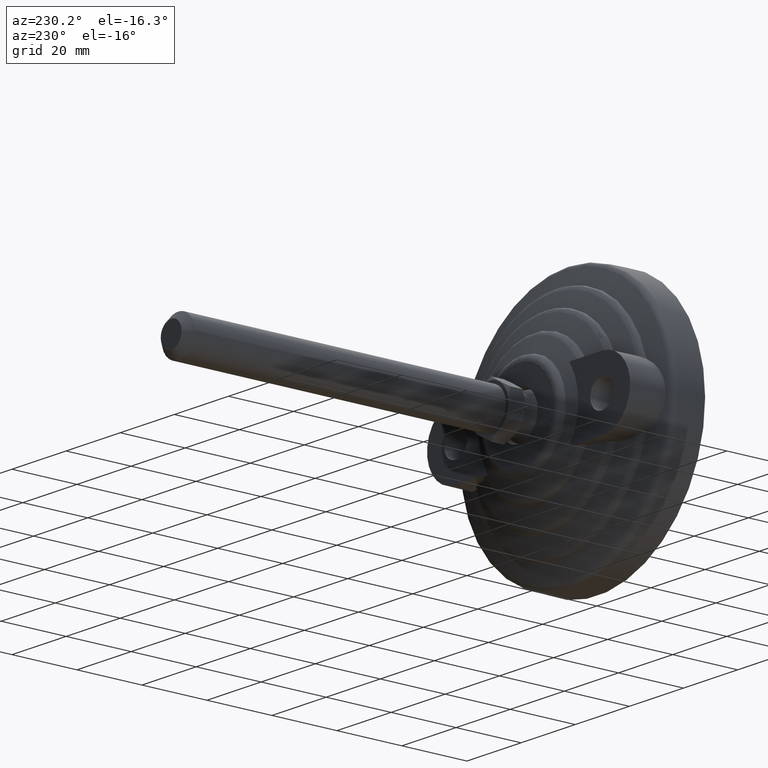
[diagram: clean part render]
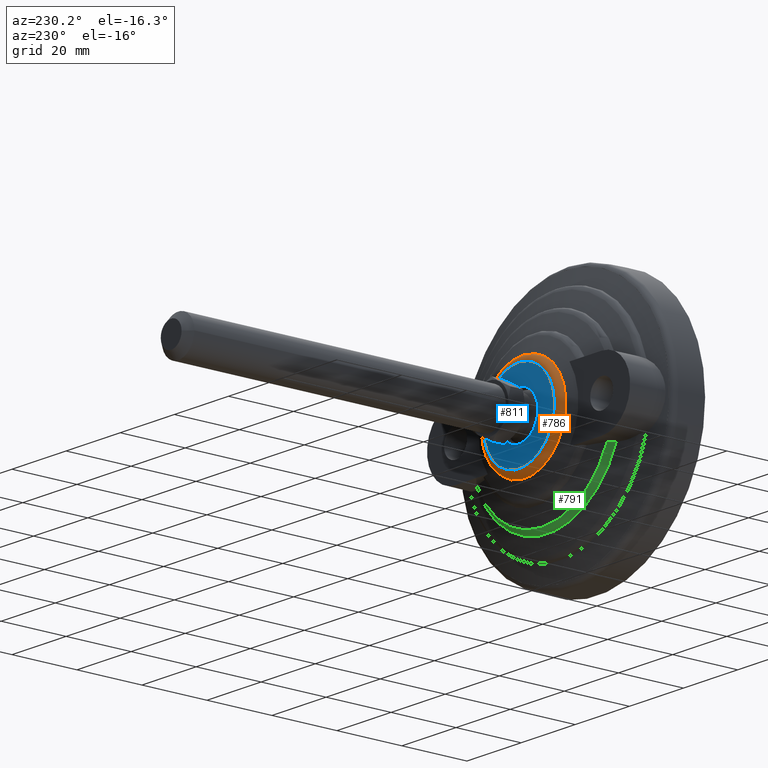
[diagram: same view with three faces highlighted in distinct colors, each labeled with its STEP entity id]
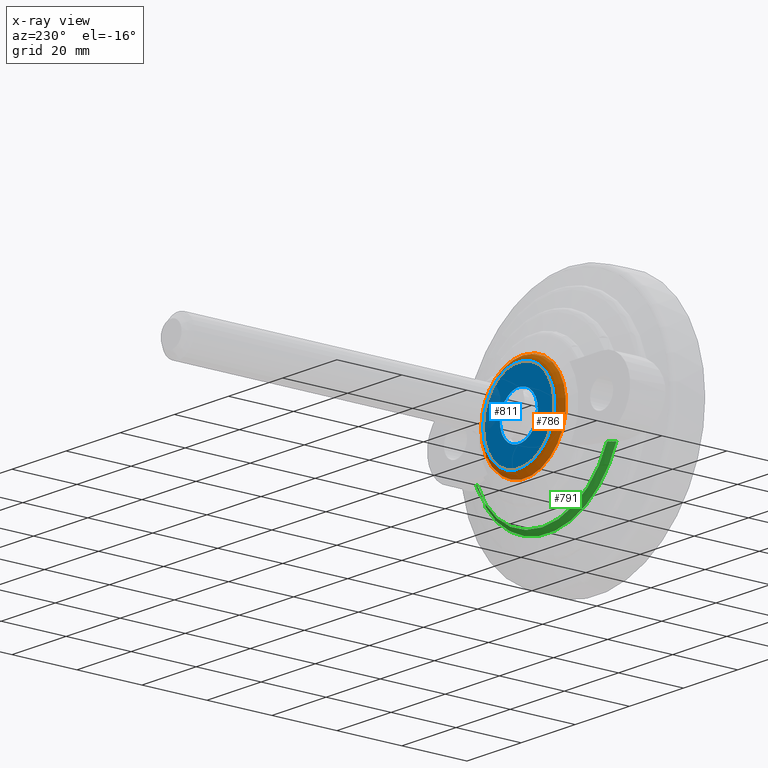
[diagram: x-ray of the same camera — body ghosted, the three highlighted faces saturated]
A machine part, auxiliary view with three faces highlighted in distinct colors.
The next image is the same camera in x-ray (body ghosted, the three faces saturated) — at least one of them is partly hidden behind the body in this view.
Their STEP definitions:

[orange] entity #786 — the highlighted toroidal blend (fillet) surface has major radius 13.2203 mm and minor (blend) radius 2.02 mm.
#114=TOROIDAL_SURFACE('',#886,13.2202761765558,2.02002500361655);
#125=FACE_OUTER_BOUND('',#171,.T.);
#171=EDGE_LOOP('',(#551,#552,#553,#554,#555,#556));
#283=CIRCLE('',#887,15.2285588046525);
#284=CIRCLE('',#888,15.2285588046525);
#285=CIRCLE('',#889,2.02002500361655);
#286=CIRCLE('',#890,13.2101000650174);
#287=CIRCLE('',#891,13.2101000650174);
#333=VERTEX_POINT('',#1274);
#334=VERTEX_POINT('',#1275);
#335=VERTEX_POINT('',#1278);
#336=VERTEX_POINT('',#1280);
#420=EDGE_CURVE('',#333,#334,#283,.T.);
#421=EDGE_CURVE('',#334,#333,#284,.T.);
#422=EDGE_CURVE('',#334,#335,#285,.T.);
#423=EDGE_CURVE('',#335,#336,#286,.T.);
#424=EDGE_CURVE('',#336,#335,#287,.T.);
#551=ORIENTED_EDGE('',*,*,#420,.F.);
#552=ORIENTED_EDGE('',*,*,#421,.F.);
#553=ORIENTED_EDGE('',*,*,#422,.T.);
#554=ORIENTED_EDGE('',*,*,#423,.T.);
#555=ORIENTED_EDGE('',*,*,#424,.T.);
#556=ORIENTED_EDGE('',*,*,#422,.F.);
#786=ADVANCED_FACE('',(#125),#114,.T.);
#886=AXIS2_PLACEMENT_3D('',#1273,#1003,#1004);
#887=AXIS2_PLACEMENT_3D('',#1276,#1005,#1006);
#888=AXIS2_PLACEMENT_3D('',#1277,#1007,#1008);
#889=AXIS2_PLACEMENT_3D('',#1279,#1009,#1010);
#890=AXIS2_PLACEMENT_3D('',#1281,#1011,#1012);
#891=AXIS2_PLACEMENT_3D('',#1282,#1013,#1014);
#1003=DIRECTION('center_axis',(0.,-1.,0.));
#1004=DIRECTION('ref_axis',(0.,0.,-1.));
#1005=DIRECTION('center_axis',(0.,-1.,0.));
#1006=DIRECTION('ref_axis',(-1.,0.,0.));
#1007=DIRECTION('center_axis',(0.,-1.,0.));
#1008=DIRECTION('ref_axis',(-1.,0.,0.));
#1009=DIRECTION('center_axis',(-1.,0.,-1.22464679914735E-16));
#1010=DIRECTION('ref_axis',(-1.22464679914735E-16,0.,1.));
#1011=DIRECTION('center_axis',(0.,-1.,0.));
#1012=DIRECTION('ref_axis',(-1.,0.,0.));
#1013=DIRECTION('center_axis',(0.,-1.,0.));
#1014=DIRECTION('ref_axis',(-1.,0.,0.));
#1273=CARTESIAN_POINT('Origin',(0.,21.979987752229,0.));
#1274=CARTESIAN_POINT('',(15.2285588046525,22.1974777541165,1.86489898717352E-15));
#1275=CARTESIAN_POINT('',(-1.86496057957449E-15,22.1974777541165,15.2285588046525));
#1276=CARTESIAN_POINT('Origin',(0.,22.1974777541165,0.));
#1277=CARTESIAN_POINT('Origin',(0.,22.1974777541165,0.));
#1278=CARTESIAN_POINT('',(-1.61777067610398E-15,23.9999871240086,13.2101000650174));
#1279=CARTESIAN_POINT('Origin',(-1.61901689034631E-15,21.979987752229,13.2202761765558));
#1280=CARTESIAN_POINT('',(13.2101000650174,23.9999871240086,1.61771724742497E-15));
#1281=CARTESIAN_POINT('Origin',(0.,23.9999871240086,0.));
#1282=CARTESIAN_POINT('Origin',(0.,23.9999871240086,0.));

[blue] entity #811 — the highlighted planar face has unit normal (0, 1, 0).
#34=FACE_BOUND('',#199,.T.);
#45=PLANE('',#940);
#150=FACE_OUTER_BOUND('',#198,.T.);
#198=EDGE_LOOP('',(#693));
#199=EDGE_LOOP('',(#694));
#288=CIRCLE('',#893,13.13);
#306=CIRCLE('',#921,7.);
#337=VERTEX_POINT('',#1284);
#367=VERTEX_POINT('',#1478);
#426=EDGE_CURVE('',#337,#337,#288,.T.);
#463=EDGE_CURVE('',#367,#367,#306,.T.);
#693=ORIENTED_EDGE('',*,*,#426,.F.);
#694=ORIENTED_EDGE('',*,*,#463,.T.);
#811=ADVANCED_FACE('',(#150,#34),#45,.T.);
#893=AXIS2_PLACEMENT_3D('',#1286,#1018,#1019);
#921=AXIS2_PLACEMENT_3D('',#1479,#1077,#1078);
#940=AXIS2_PLACEMENT_3D('',#1566,#1124,#1125);
#1018=DIRECTION('center_axis',(0.,-1.,0.));
#1019=DIRECTION('ref_axis',(-1.,0.,0.));
#1077=DIRECTION('center_axis',(0.,-1.,0.));
#1078=DIRECTION('ref_axis',(1.,0.,0.));
#1124=DIRECTION('center_axis',(0.,1.,0.));
#1125=DIRECTION('ref_axis',(0.,0.,1.));
#1284=CARTESIAN_POINT('',(13.13,24.,1.60790814256878E-15));
#1286=CARTESIAN_POINT('Origin',(0.,24.,0.));
#1478=CARTESIAN_POINT('',(-7.,24.,8.57224447675664E-16));
#1479=CARTESIAN_POINT('Origin',(0.,24.,0.));
#1566=CARTESIAN_POINT('Origin',(-6.565,24.,-1.60790814256878E-15));

[green] entity #791 — the highlighted toroidal blend (fillet) surface has major radius 25.4983 mm and minor (blend) radius 2.0201 mm.
#101=B_SPLINE_CURVE_WITH_KNOTS('',3,(#1368,#1369,#1370,#1371,#1372,#1373,
#1374,#1375,#1376,#1377),.UNSPECIFIED.,.F.,.F.,(4,2,2,2,4),(-0.238121557201233,
-0.22862764297218,-0.148658180348353,-0.0728183243338206,-0.0212879109177592),
 .UNSPECIFIED.);
#102=B_SPLINE_CURVE_WITH_KNOTS('',3,(#1380,#1381,#1382,#1383,#1384,#1385,
#1386,#1387,#1388,#1389),.UNSPECIFIED.,.F.,.F.,(4,2,2,2,4),(0.0212879109177592,
0.0728183243338206,0.148658180348353,0.22862764297218,0.238121557201232),
 .UNSPECIFIED.);
#117=TOROIDAL_SURFACE('',#904,25.4983075776962,2.02009596443887);
#130=FACE_OUTER_BOUND('',#176,.T.);
#176=EDGE_LOOP('',(#583,#584,#585,#586));
#296=CIRCLE('',#905,26.2130899969146);
#297=CIRCLE('',#906,27.5062430386496);
#351=VERTEX_POINT('',#1364);
#352=VERTEX_POINT('',#1365);
#353=VERTEX_POINT('',#1367);
#354=VERTEX_POINT('',#1378);
#443=EDGE_CURVE('',#351,#352,#296,.T.);
#444=EDGE_CURVE('',#352,#353,#101,.T.);
#445=EDGE_CURVE('',#354,#353,#297,.T.);
#446=EDGE_CURVE('',#354,#351,#102,.T.);
#583=ORIENTED_EDGE('',*,*,#443,.T.);
#584=ORIENTED_EDGE('',*,*,#444,.T.);
#585=ORIENTED_EDGE('',*,*,#445,.F.);
#586=ORIENTED_EDGE('',*,*,#446,.T.);
#791=ADVANCED_FACE('',(#130),#117,.T.);
#904=AXIS2_PLACEMENT_3D('',#1363,#1041,#1042);
#905=AXIS2_PLACEMENT_3D('',#1366,#1043,#1044);
#906=AXIS2_PLACEMENT_3D('',#1379,#1045,#1046);
#1041=DIRECTION('center_axis',(0.,-1.,0.));
#1042=DIRECTION('ref_axis',(0.,0.,-1.));
#1043=DIRECTION('center_axis',(0.,-1.,0.));
#1044=DIRECTION('ref_axis',(-1.,0.,0.));
#1045=DIRECTION('center_axis',(0.,-1.,0.));
#1046=DIRECTION('ref_axis',(-1.,0.,0.));
#1363=CARTESIAN_POINT('Origin',(0.,14.9665625895028,0.));
#1364=CARTESIAN_POINT('',(-24.0182448814717,16.8559735555763,-10.5));
#1365=CARTESIAN_POINT('',(24.0182448814717,16.8559735555763,-10.5));
#1366=CARTESIAN_POINT('Origin',(0.,16.8559735555763,0.));
#1367=CARTESIAN_POINT('',(25.4232847228926,15.1878833752142,-10.5));
#1368=CARTESIAN_POINT('Ctrl Pts',(24.0182448814717,16.8559735555762,-10.5));
#1369=CARTESIAN_POINT('Ctrl Pts',(24.0492204652013,16.84523638186,-10.5));
#1370=CARTESIAN_POINT('Ctrl Pts',(24.0795007475373,16.83400369162,-10.5));
#1371=CARTESIAN_POINT('Ctrl Pts',(24.3569357952528,16.7246430606355,-10.5));
#1372=CARTESIAN_POINT('Ctrl Pts',(24.6279134283034,16.5546637630024,-10.5));
#1373=CARTESIAN_POINT('Ctrl Pts',(25.0039985834672,16.1964748026224,-10.5));
#1374=CARTESIAN_POINT('Ctrl Pts',(25.1794535657355,15.9490026034522,-10.5));
#1375=CARTESIAN_POINT('Ctrl Pts',(25.3482497114308,15.5594317135592,-10.5));
#1376=CARTESIAN_POINT('Ctrl Pts',(25.4014449668417,15.3710202145141,-10.5));
#1377=CARTESIAN_POINT('Ctrl Pts',(25.4232847228926,15.1878833752142,-10.5));
#1378=CARTESIAN_POINT('',(-25.4232847228926,15.1878833752142,-10.5));
#1379=CARTESIAN_POINT('Origin',(0.,15.1878833752142,0.));
#1380=CARTESIAN_POINT('Ctrl Pts',(-25.4232847228926,15.1878833752142,-10.5));
#1381=CARTESIAN_POINT('Ctrl Pts',(-25.4014449668417,15.3710202145141,-10.5));
#1382=CARTESIAN_POINT('Ctrl Pts',(-25.3482497114308,15.5594317135592,-10.5));
#1383=CARTESIAN_POINT('Ctrl Pts',(-25.1794535657355,15.9490026034522,-10.5));
#1384=CARTESIAN_POINT('Ctrl Pts',(-25.0039985834672,16.1964748026224,-10.5));
#1385=CARTESIAN_POINT('Ctrl Pts',(-24.6279134283034,16.5546637630024,-10.5));
#1386=CARTESIAN_POINT('Ctrl Pts',(-24.3569357952528,16.7246430606355,-10.5));
#1387=CARTESIAN_POINT('Ctrl Pts',(-24.0795007475373,16.83400369162,-10.5));
#1388=CARTESIAN_POINT('Ctrl Pts',(-24.0492204652013,16.84523638186,-10.5));
#1389=CARTESIAN_POINT('Ctrl Pts',(-24.0182448814717,16.8559735555762,-10.5));